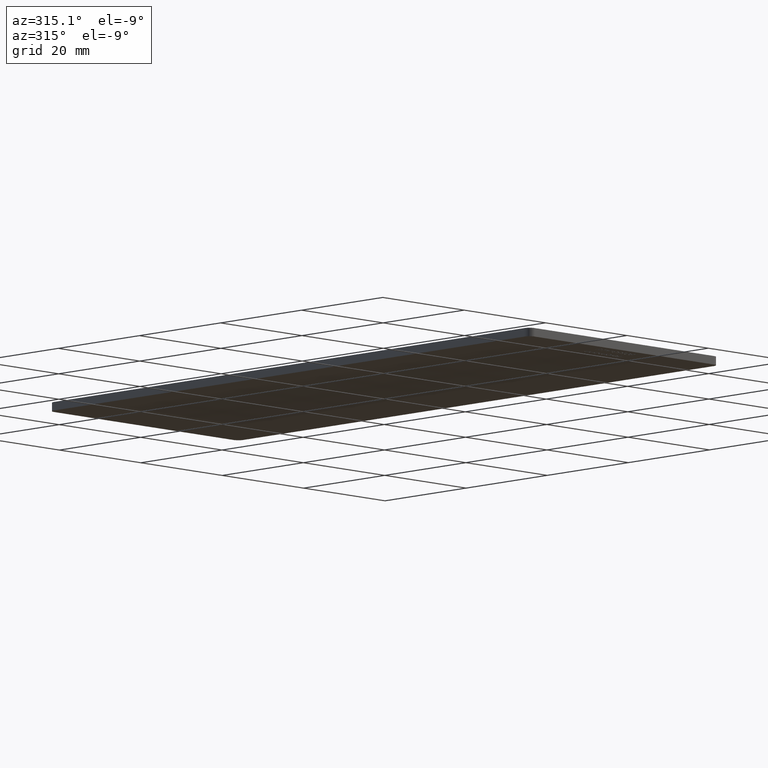
[diagram: clean part render]
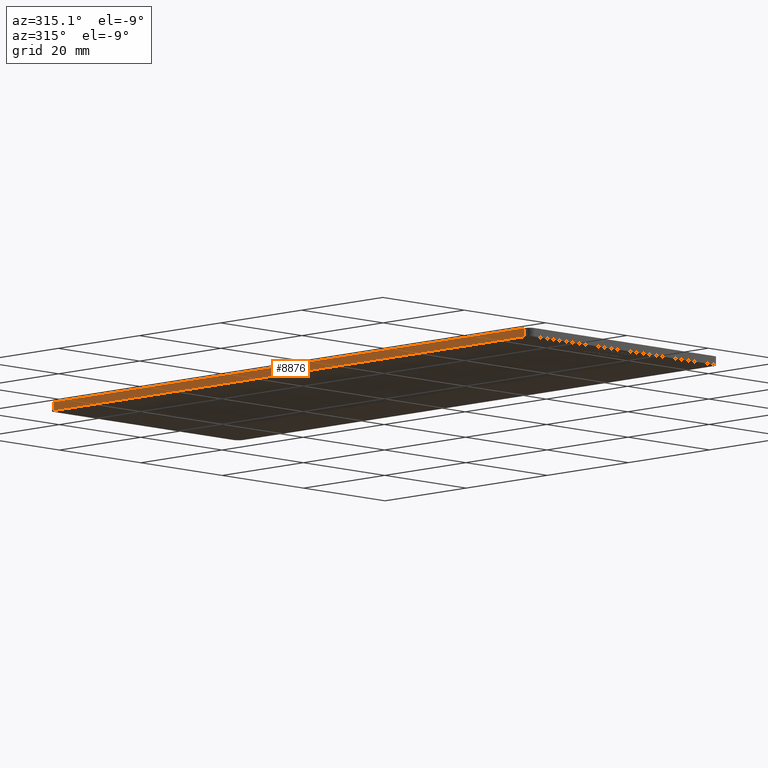
[diagram: same view with one face highlighted and labeled with its STEP entity id]
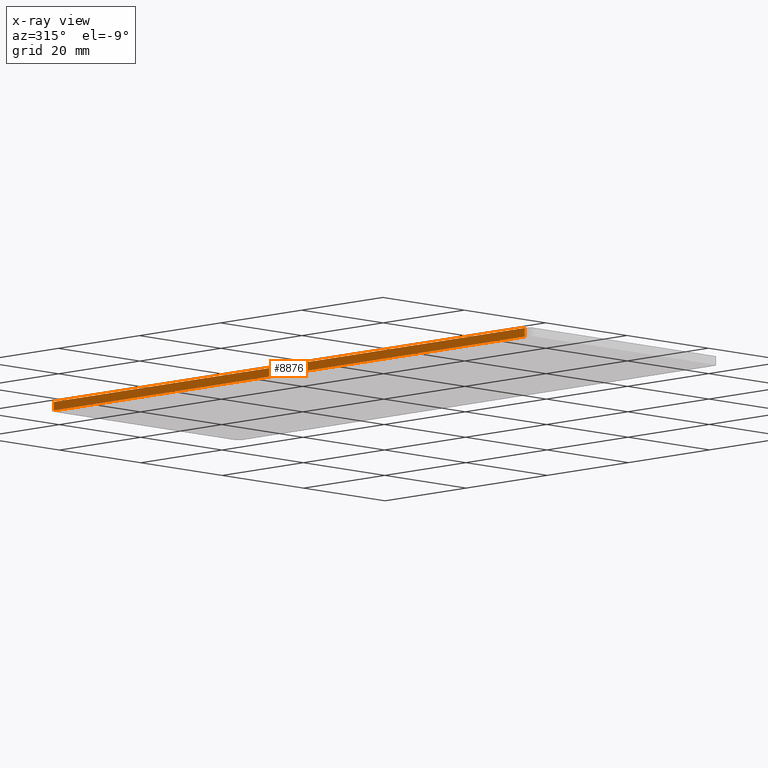
[diagram: x-ray of the same camera — body ghosted, the highlighted face saturated]
A machine part, auxiliary view. The second image highlights one B-rep face of the part: STEP entity #8876.
The next image is the same camera in x-ray: the body ghosted, the highlighted face saturated — about 0% of this face is hidden behind the body in this view.
In plain terms, the highlighted planar face has unit normal (1, 0, -0).
Its self-contained STEP definition (entity closure, byte-faithful):
#149 = EDGE_CURVE ( 'NONE', #7324, #8667, #11165, .T. ) ;
#257 = ORIENTED_EDGE ( 'NONE', *, *, #3417, .F. ) ;
#295 = CARTESIAN_POINT ( 'NONE',  ( -23.25000000000001400, 58.04999999999997600, 0.0000000000000000000 ) ) ;
#302 = VERTEX_POINT ( 'NONE', #7084 ) ;
#348 = ORIENTED_EDGE ( 'NONE', *, *, #11354, .T. ) ;
#539 = DIRECTION ( 'NONE',  ( 1.171121333992781200E-016, -1.000000000000000000, 0.0000000000000000000 ) ) ;
#1043 = CARTESIAN_POINT ( 'NONE',  ( -23.25000000000001400, 59.24999999999997900, 1.500000000000000000 ) ) ;
#2253 = VECTOR ( 'NONE', #539, 1000.000000000000000 ) ;
#2888 = DIRECTION ( 'NONE',  ( 0.0000000000000000000, 0.0000000000000000000, -1.000000000000000000 ) ) ;
#3386 = DIRECTION ( 'NONE',  ( -1.171121333992781200E-016, 1.000000000000000000, 0.0000000000000000000 ) ) ;
#3417 = EDGE_CURVE ( 'NONE', #10012, #302, #5213, .T. ) ;
#3428 = PLANE ( 'NONE',  #8388 ) ;
#3617 = CARTESIAN_POINT ( 'NONE',  ( -23.25000000000001400, 59.24999999999997900, 0.0000000000000000000 ) ) ;
#4442 = DIRECTION ( 'NONE',  ( 1.000000000000000000, 1.171121333992781200E-016, -0.0000000000000000000 ) ) ;
#4486 = CARTESIAN_POINT ( 'NONE',  ( -23.25000000000000000, -58.05000000000001100, 0.0000000000000000000 ) ) ;
#4681 = CARTESIAN_POINT ( 'NONE',  ( -23.25000000000001400, 58.04999999999997600, 0.0000000000000000000 ) ) ;
#4804 = EDGE_LOOP ( 'NONE', ( #257, #11590, #10552, #348 ) ) ;
#5213 = LINE ( 'NONE', #1043, #8136 ) ;
#5356 = CARTESIAN_POINT ( 'NONE',  ( -23.25000000000001400, 59.24999999999997900, 1.500000000000000000 ) ) ;
#5486 = DIRECTION ( 'NONE',  ( 0.0000000000000000000, -0.0000000000000000000, 1.000000000000000000 ) ) ;
#6249 = VECTOR ( 'NONE', #5486, 1000.000000000000000 ) ;
#6518 = CARTESIAN_POINT ( 'NONE',  ( -23.25000000000000000, -58.05000000000001100, 1.500000000000000000 ) ) ;
#6952 = CARTESIAN_POINT ( 'NONE',  ( -23.25000000000001400, 58.04999999999997600, 1.500000000000000000 ) ) ;
#7084 = CARTESIAN_POINT ( 'NONE',  ( -23.25000000000000000, -58.05000000000001100, 1.500000000000000000 ) ) ;
#7324 = VERTEX_POINT ( 'NONE', #295 ) ;
#8136 = VECTOR ( 'NONE', #11380, 1000.000000000000000 ) ;
#8388 = AXIS2_PLACEMENT_3D ( 'NONE', #5356, #4442, #3386 ) ;
#8667 = VERTEX_POINT ( 'NONE', #4486 ) ;
#8876 = ADVANCED_FACE ( 'NONE', ( #10497 ), #3428, .F. ) ;
#9971 = VECTOR ( 'NONE', #2888, 1000.000000000000000 ) ;
#10012 = VERTEX_POINT ( 'NONE', #6952 ) ;
#10150 = LINE ( 'NONE', #6518, #6249 ) ;
#10497 = FACE_OUTER_BOUND ( 'NONE', #4804, .T. ) ;
#10552 = ORIENTED_EDGE ( 'NONE', *, *, #149, .T. ) ;
#11165 = LINE ( 'NONE', #3617, #2253 ) ;
#11354 = EDGE_CURVE ( 'NONE', #8667, #302, #10150, .T. ) ;
#11380 = DIRECTION ( 'NONE',  ( 1.171121333992781200E-016, -1.000000000000000000, 0.0000000000000000000 ) ) ;
#11590 = ORIENTED_EDGE ( 'NONE', *, *, #13179, .T. ) ;
#12715 = LINE ( 'NONE', #4681, #9971 ) ;
#13179 = EDGE_CURVE ( 'NONE', #10012, #7324, #12715, .T. ) ;